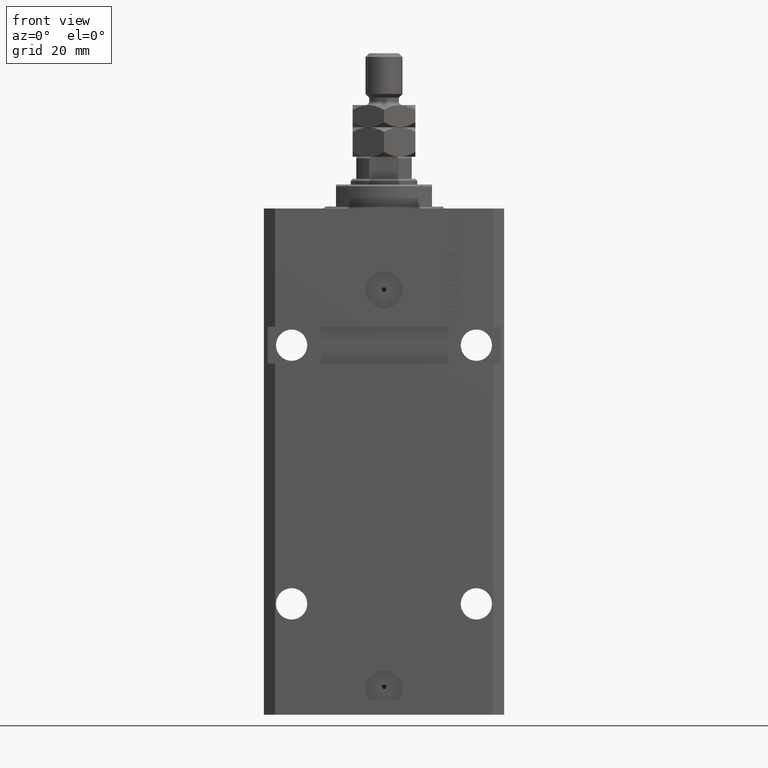
[diagram: clean part render]
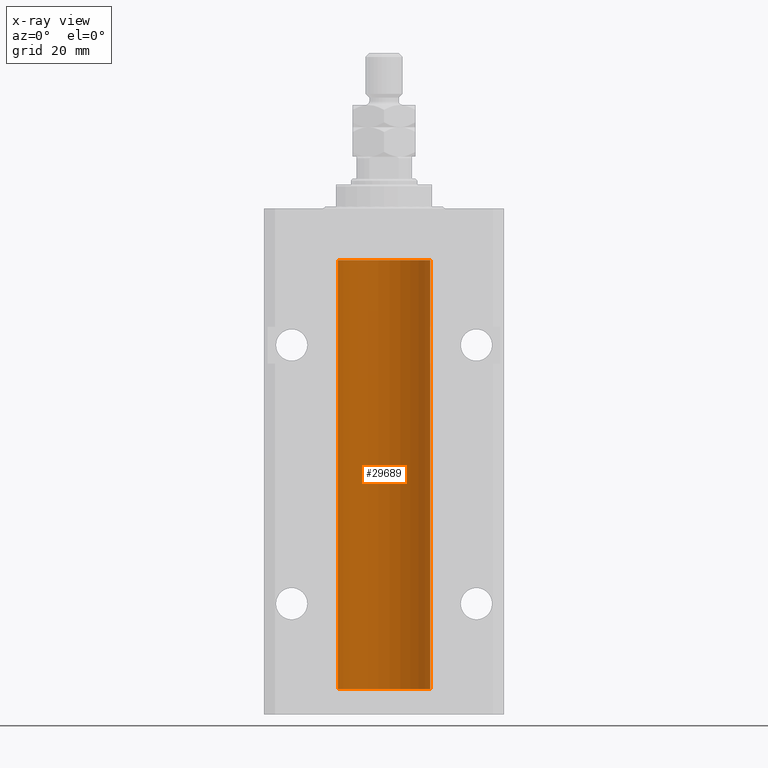
[diagram: x-ray — body ghosted, one internal face saturated and labeled with its STEP entity id]
A machine part, front view, then the same camera in x-ray: the body is ghosted and one INTERNAL B-rep face — a face not visible from any outside direction — is saturated and labeled: STEP entity #29689.
In plain terms, the highlighted cylindrical surface (partial cylindrical patch) has radius 12.5 mm, axis along (0, 0, 1).
Its self-contained STEP definition (entity closure, byte-faithful):
#254 = DIRECTION ( 'NONE',  ( 1.000000000000000000, 0.000000000000000000, 0.000000000000000000 ) ) ;
#284 = VECTOR ( 'NONE', #18424, 1000.000000000000000 ) ;
#361 = CARTESIAN_POINT ( 'NONE',  ( -12.48809959379011403, 0.5462151254764975317, -22.31461370481611795 ) ) ;
#445 = CARTESIAN_POINT ( 'NONE',  ( -12.50000000000000000, 1.530808498934191521E-15, -130.0999999999999943 ) ) ;
#599 = ORIENTED_EDGE ( 'NONE', *, *, #12807, .F. ) ;
#612 = CYLINDRICAL_SURFACE ( 'NONE', #4309, 12.50000000000000000 ) ;
#1231 = CARTESIAN_POINT ( 'NONE',  ( 12.50000000000000000, 0.000000000000000000, -130.0999999999999943 ) ) ;
#2590 = CARTESIAN_POINT ( 'NONE',  ( -12.49625855304193855, 0.3150454781037954621, -124.4540280029748658 ) ) ;
#3600 = ORIENTED_EDGE ( 'NONE', *, *, #23201, .F. ) ;
#3698 = ORIENTED_EDGE ( 'NONE', *, *, #17220, .T. ) ;
#3858 = CARTESIAN_POINT ( 'NONE',  ( -12.48436813453758454, 0.6249418250771192618, -21.83668996798922635 ) ) ;
#4104 = CARTESIAN_POINT ( 'NONE',  ( -12.49422197749724006, 0.3843754434364375916, -21.50047099568095277 ) ) ;
#4309 = AXIS2_PLACEMENT_3D ( 'NONE', #30487, #33979, #11346 ) ;
#4457 = CARTESIAN_POINT ( 'NONE',  ( -12.50000000000000000, -1.890568805888175348E-14, -124.3750000000000000 ) ) ;
#4575 = ORIENTED_EDGE ( 'NONE', *, *, #15156, .T. ) ;
#5362 = CARTESIAN_POINT ( 'NONE',  ( -12.49631005746706691, 0.3253680783018559897, -125.5585674046538998 ) ) ;
#7223 = LINE ( 'NONE', #34096, #284 ) ;
#7301 = CARTESIAN_POINT ( 'NONE',  ( -12.50000000000000000, 1.530808498934191521E-15, -130.0999999999999943 ) ) ;
#7349 = CARTESIAN_POINT ( 'NONE',  ( -12.48520330846397819, 0.6088355886774127201, -22.16325431852561323 ) ) ;
#7751 = DIRECTION ( 'NONE',  ( -0.000000000000000000, -0.000000000000000000, 1.000000000000000000 ) ) ;
#8480 = DIRECTION ( 'NONE',  ( 0.000000000000000000, 0.000000000000000000, 1.000000000000000000 ) ) ;
#8965 = DIRECTION ( 'NONE',  ( -0.000000000000000000, -0.000000000000000000, 1.000000000000000000 ) ) ;
#9634 = VECTOR ( 'NONE', #7751, 1000.000000000000000 ) ;
#9711 = CIRCLE ( 'NONE', #14468, 12.50000000000000000 ) ;
#11346 = DIRECTION ( 'NONE',  ( 1.000000000000000000, 0.000000000000000000, 0.000000000000000000 ) ) ;
#12245 = VERTEX_POINT ( 'NONE', #37767 ) ;
#12807 = EDGE_CURVE ( 'NONE', #44570, #22801, #15479, .T. ) ;
#14468 = AXIS2_PLACEMENT_3D ( 'NONE', #41851, #8480, #254 ) ;
#14584 = CARTESIAN_POINT ( 'NONE',  ( -12.49999999999999289, 0.1631761135151241215, -22.62499999999984013 ) ) ;
#14639 = CIRCLE ( 'NONE', #40870, 12.50000000000000000 ) ;
#15156 = EDGE_CURVE ( 'NONE', #12245, #22801, #9711, .T. ) ;
#15324 = FACE_OUTER_BOUND ( 'NONE', #48000, .T. ) ;
#15329 = CARTESIAN_POINT ( 'NONE',  ( -12.50000000000017941, 3.883381307462307207E-13, -125.6250000000035953 ) ) ;
#15479 = LINE ( 'NONE', #19949, #9634 ) ;
#17220 = EDGE_CURVE ( 'NONE', #32381, #38521, #42191, .T. ) ;
#18304 = CARTESIAN_POINT ( 'NONE',  ( -12.50000000000017941, 3.883381646606358354E-13, -22.62500000000358824 ) ) ;
#18424 = DIRECTION ( 'NONE',  ( -0.000000000000000000, -0.000000000000000000, 1.000000000000000000 ) ) ;
#18533 = ORIENTED_EDGE ( 'NONE', *, *, #39172, .T. ) ;
#19293 = CARTESIAN_POINT ( 'NONE',  ( -12.48810268015257563, 0.5573155909661349217, -21.67347410093867666 ) ) ;
#19949 = CARTESIAN_POINT ( 'NONE',  ( -12.50000000000000000, 1.530808498934191521E-15, -130.0999999999999943 ) ) ;
#21275 = CARTESIAN_POINT ( 'NONE',  ( -12.49011732893843707, 0.5003763274120269777, -125.3834811128928806 ) ) ;
#21724 = EDGE_CURVE ( 'NONE', #44570, #25756, #43817, .T. ) ;
#21747 = CARTESIAN_POINT ( 'NONE',  ( 12.50000000000000000, 0.000000000000000000, -130.0999999999999943 ) ) ;
#22470 = CARTESIAN_POINT ( 'NONE',  ( -12.50000000000017941, 3.883381646606358354E-13, -22.62500000000358824 ) ) ;
#22801 = VERTEX_POINT ( 'NONE', #47242 ) ;
#22877 = VECTOR ( 'NONE', #48657, 1000.000000000000000 ) ;
#23201 = EDGE_CURVE ( 'NONE', #47407, #30531, #14639, .T. ) ;
#24516 = CARTESIAN_POINT ( 'NONE',  ( -12.49422197749723829, 0.3843754434364221040, -124.5004709956809705 ) ) ;
#25262 = ORIENTED_EDGE ( 'NONE', *, *, #21724, .T. ) ;
#25655 = CARTESIAN_POINT ( 'NONE',  ( 0.000000000000000000, 0.000000000000000000, -130.0999999999999943 ) ) ;
#25756 = VERTEX_POINT ( 'NONE', #22470 ) ;
#26146 = DIRECTION ( 'NONE',  ( 1.000000000000000000, 0.000000000000000000, 0.000000000000000000 ) ) ;
#26503 = CARTESIAN_POINT ( 'NONE',  ( -12.49625855304193678, 0.3150454781038042329, -21.45402800297484802 ) ) ;
#27274 = ORIENTED_EDGE ( 'NONE', *, *, #28852, .F. ) ;
#27380 = LINE ( 'NONE', #1231, #42705 ) ;
#28254 = CARTESIAN_POINT ( 'NONE',  ( -12.48436813453758631, 0.6249418250771061611, -124.8366899679892441 ) ) ;
#28496 = CARTESIAN_POINT ( 'NONE',  ( -12.50000000000000000, -1.890568805888175348E-14, -124.3750000000000000 ) ) ;
#28852 = EDGE_CURVE ( 'NONE', #30531, #38521, #7223, .T. ) ;
#29689 = ADVANCED_FACE ( 'NONE', ( #15324 ), #612, .F. ) ;
#30238 = CARTESIAN_POINT ( 'NONE',  ( -12.50000000000000000, -2.089494013101375120E-17, -21.37499999999999645 ) ) ;
#30487 = CARTESIAN_POINT ( 'NONE',  ( 0.000000000000000000, 0.000000000000000000, -130.0999999999999943 ) ) ;
#30531 = VERTEX_POINT ( 'NONE', #445 ) ;
#32381 = VERTEX_POINT ( 'NONE', #4457 ) ;
#32483 = CARTESIAN_POINT ( 'NONE',  ( -12.48520330846398174, 0.6088355886774048376, -125.1632543185256310 ) ) ;
#33979 = DIRECTION ( 'NONE',  ( -0.000000000000000000, -0.000000000000000000, 1.000000000000000000 ) ) ;
#34096 = CARTESIAN_POINT ( 'NONE',  ( -12.50000000000000000, 1.530808498934191521E-15, -130.0999999999999943 ) ) ;
#34475 = CARTESIAN_POINT ( 'NONE',  ( -12.48436376893640443, 0.6250290278979917513, -22.08132082824473486 ) ) ;
#35991 = CARTESIAN_POINT ( 'NONE',  ( -12.48810268015257563, 0.5573155909661203777, -124.6734741009386909 ) ) ;
#36484 = CARTESIAN_POINT ( 'NONE',  ( -12.49999999999999467, 0.1631761135151251485, -125.6249999999999005 ) ) ;
#37245 = CARTESIAN_POINT ( 'NONE',  ( -12.49631005746706336, 0.3253680783018528255, -22.55856740465392463 ) ) ;
#37767 = CARTESIAN_POINT ( 'NONE',  ( 12.50000000000000000, 0.000000000000000000, -13.99999999999999822 ) ) ;
#37932 = LINE ( 'NONE', #7301, #22877 ) ;
#38224 = CARTESIAN_POINT ( 'NONE',  ( -12.50000000000000000, 0.08260426088729219685, -21.37500000000000000 ) ) ;
#38521 = VERTEX_POINT ( 'NONE', #15329 ) ;
#38766 = EDGE_CURVE ( 'NONE', #32381, #25756, #37932, .T. ) ;
#39172 = EDGE_CURVE ( 'NONE', #47407, #12245, #27380, .T. ) ;
#39487 = CARTESIAN_POINT ( 'NONE',  ( -12.49915784441387068, 0.1636601911727856851, -124.3912681898942765 ) ) ;
#40870 = AXIS2_PLACEMENT_3D ( 'NONE', #25655, #48839, #26146 ) ;
#40970 = CARTESIAN_POINT ( 'NONE',  ( -12.49011732893843529, 0.5003763274120274218, -22.38348111289287701 ) ) ;
#41851 = CARTESIAN_POINT ( 'NONE',  ( 0.000000000000000000, 0.000000000000000000, -13.99999999999999822 ) ) ;
#42191 = B_SPLINE_CURVE_WITH_KNOTS ( 'NONE', 3,
 ( #28496, #47213, #39487, #2590, #24516, #35991, #28254, #47455, #32483, #43716, #21275, #5362, #36484, #47704 ),
 .UNSPECIFIED., .F., .F.,
 ( 4, 2, 2, 2, 2, 2, 4 ),
 ( 3.496117753580553008E-18, 0.0002442924852390892100, 0.0004885849704781749505, 0.0009771699409563759219, 0.001221462426195476462, 0.001465754911434576785, 0.001954339881912777865 ),
 .UNSPECIFIED. ) ;
#42705 = VECTOR ( 'NONE', #8965, 1000.000000000000000 ) ;
#43716 = CARTESIAN_POINT ( 'NONE',  ( -12.48809959379011758, 0.5462151254764870956, -125.3146137048161677 ) ) ;
#43817 = B_SPLINE_CURVE_WITH_KNOTS ( 'NONE', 3,
 ( #30238, #38224, #48706, #26503, #4104, #19293, #3858, #34475, #7349, #361, #40970, #37245, #14584, #18304 ),
 .UNSPECIFIED., .F., .F.,
 ( 4, 2, 2, 2, 2, 2, 4 ),
 ( 2.030551168097110502E-20, 0.0002442924852390969078, 0.0004885849704781938157, 0.0009771699409563880650, 0.001221462426195485135, 0.001465754911434582423, 0.001954339881912776130 ),
 .UNSPECIFIED. ) ;
#44570 = VERTEX_POINT ( 'NONE', #46620 ) ;
#46237 = ORIENTED_EDGE ( 'NONE', *, *, #38766, .F. ) ;
#46620 = CARTESIAN_POINT ( 'NONE',  ( -12.50000000000000000, -2.089494013101375120E-17, -21.37499999999999645 ) ) ;
#47213 = CARTESIAN_POINT ( 'NONE',  ( -12.50000000000000178, 0.08260426088727608473, -124.3749999999999858 ) ) ;
#47242 = CARTESIAN_POINT ( 'NONE',  ( -12.50000000000000000, 1.530808498934191521E-15, -13.99999999999999822 ) ) ;
#47407 = VERTEX_POINT ( 'NONE', #21747 ) ;
#47455 = CARTESIAN_POINT ( 'NONE',  ( -12.48436376893640265, 0.6250290278979852010, -125.0813208282447135 ) ) ;
#47704 = CARTESIAN_POINT ( 'NONE',  ( -12.50000000000017941, 3.883381307462307207E-13, -125.6250000000035953 ) ) ;
#48000 = EDGE_LOOP ( 'NONE', ( #27274, #3600, #18533, #4575, #599, #25262, #46237, #3698 ) ) ;
#48657 = DIRECTION ( 'NONE',  ( -0.000000000000000000, -0.000000000000000000, 1.000000000000000000 ) ) ;
#48706 = CARTESIAN_POINT ( 'NONE',  ( -12.49915784441386890, 0.1636601911727947889, -21.39126818989430490 ) ) ;
#48839 = DIRECTION ( 'NONE',  ( 0.000000000000000000, 0.000000000000000000, 1.000000000000000000 ) ) ;